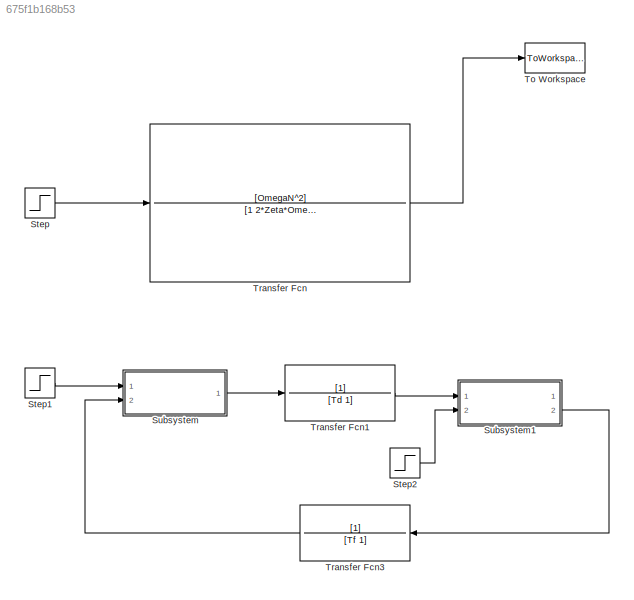
MODEL slx_675f1b168b53
KIND model
CONFIG AbsTol = auto
CONFIG EnableMultiTasking = off
CONFIG FixedStep = 0.0001
CONFIG MaxStep = auto
CONFIG MinStep = auto
CONFIG RelTol = 1e-3
CONFIG SampleTimeConstraint = Unconstrained
CONFIG Solver = FixedStepAuto
CONFIG SolverName = FixedStepAuto
CONFIG StartTime = 0.0
CONFIG StopTime = 1
BLOCK [Step] Step
  After = 62.5
  SampleTime = 0
  Time = 0
BLOCK [Step] Step1
  After = 62.5
  SampleTime = 0
  Time = 0
BLOCK [Step] Step2
  After = 70
  SampleTime = 0
  Time = 0.5
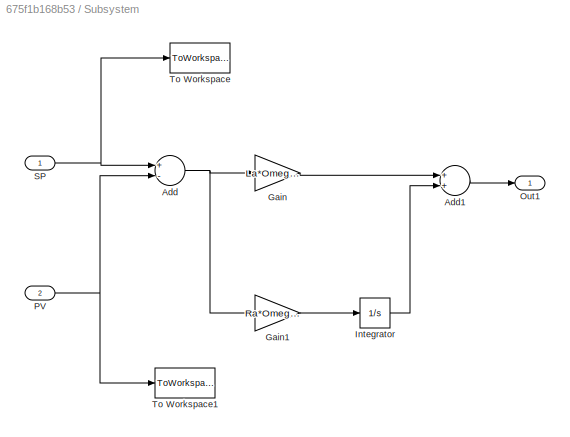
BLOCK [SubSystem] Subsystem
  Ports = [2, 1]
  RequestExecContextInheritance = off
BLOCK [Sum] Subsystem/Add
  InputSameDT = off
  Inputs = +-
  OutDataTypeStr = Inherit: Inherit via internal rule
  Ports = [2, 1]
  SaturateOnIntegerOverflow = off
BLOCK [Sum] Subsystem/Add1
  InputSameDT = off
  OutDataTypeStr = Inherit: Inherit via internal rule
  Ports = [2, 1]
  SaturateOnIntegerOverflow = off
BLOCK [Gain] Subsystem/Gain
  Gain = La*OmegaN/2/Zeta
  OutDataTypeStr = Inherit: Inherit via internal rule
  ParamDataTypeStr = Inherit: Inherit via internal rule
  SaturateOnIntegerOverflow = off
BLOCK [Gain] Subsystem/Gain1
  Gain = Ra*OmegaN/2/Zeta
  OutDataTypeStr = Inherit: Inherit via internal rule
  ParamDataTypeStr = Inherit: Inherit via internal rule
  SaturateOnIntegerOverflow = off
BLOCK [Integrator] Subsystem/Integrator
  Ports = [1, 1]
BLOCK [Outport] Subsystem/Out1
  IconDisplay = Port number
BLOCK [Inport] Subsystem/PV
  IconDisplay = Port number
  Port = 2
BLOCK [Inport] Subsystem/SP
  IconDisplay = Port number
BLOCK [ToWorkspace] Subsystem/To Workspace
  FixptAsFi = on
  MaxDataPoints = inf
  Ports = [1]
  SampleTime = -1
  Save2DSignal = 3-D array (concatenate along third dimension)
  SaveFormat = Timeseries
  VariableName = I_SP
BLOCK [ToWorkspace] Subsystem/To Workspace1
  FixptAsFi = on
  MaxDataPoints = inf
  Ports = [1]
  SampleTime = -1
  Save2DSignal = 3-D array (concatenate along third dimension)
  SaveFormat = Timeseries
  VariableName = I_PV
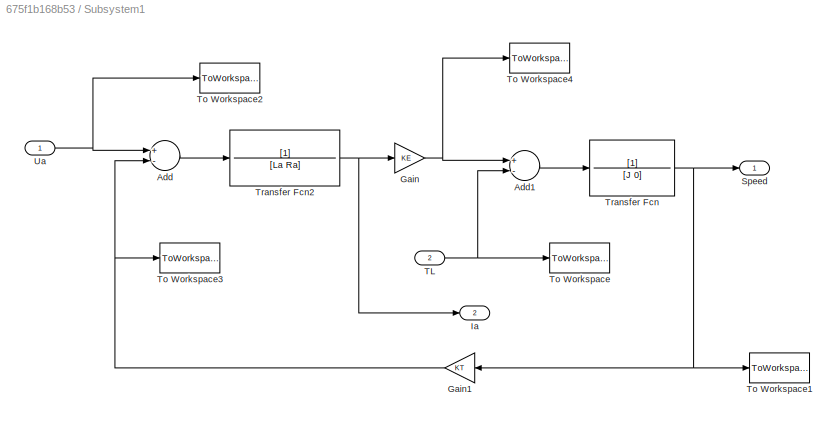
BLOCK [SubSystem] Subsystem1
  Ports = [2, 2]
  RequestExecContextInheritance = off
BLOCK [Sum] Subsystem1/Add
  InputSameDT = off
  Inputs = +-
  OutDataTypeStr = Inherit: Inherit via internal rule
  Ports = [2, 1]
  SaturateOnIntegerOverflow = off
BLOCK [Sum] Subsystem1/Add1
  InputSameDT = off
  Inputs = +-
  OutDataTypeStr = Inherit: Inherit via internal rule
  Ports = [2, 1]
  SaturateOnIntegerOverflow = off
BLOCK [Gain] Subsystem1/Gain
  Gain = KE
  OutDataTypeStr = Inherit: Inherit via internal rule
  ParamDataTypeStr = Inherit: Inherit via internal rule
  SaturateOnIntegerOverflow = off
BLOCK [Gain] Subsystem1/Gain1
  Gain = KT
  OutDataTypeStr = Inherit: Inherit via internal rule
  ParamDataTypeStr = Inherit: Inherit via internal rule
  SaturateOnIntegerOverflow = off
BLOCK [Outport] Subsystem1/Ia
  IconDisplay = Port number
  Port = 2
BLOCK [Outport] Subsystem1/Speed
  IconDisplay = Port number
BLOCK [Inport] Subsystem1/TL
  IconDisplay = Port number
  Port = 2
BLOCK [ToWorkspace] Subsystem1/To Workspace
  FixptAsFi = on
  MaxDataPoints = inf
  Ports = [1]
  SampleTime = -1
  Save2DSignal = 3-D array (concatenate along third dimension)
  SaveFormat = Timeseries
  VariableName = TL
BLOCK [ToWorkspace] Subsystem1/To Workspace1
  FixptAsFi = on
  MaxDataPoints = inf
  Ports = [1]
  SampleTime = -1
  Save2DSignal = 3-D array (concatenate along third dimension)
  SaveFormat = Timeseries
  VariableName = Speed
BLOCK [ToWorkspace] Subsystem1/To Workspace2
  FixptAsFi = on
  MaxDataPoints = inf
  Ports = [1]
  SampleTime = -1
  Save2DSignal = 3-D array (concatenate along third dimension)
  SaveFormat = Timeseries
  VariableName = Ua
BLOCK [ToWorkspace] Subsystem1/To Workspace3
  FixptAsFi = on
  MaxDataPoints = inf
  Ports = [1]
  SampleTime = -1
  Save2DSignal = 3-D array (concatenate along third dimension)
  SaveFormat = Timeseries
  VariableName = Ea
BLOCK [ToWorkspace] Subsystem1/To Workspace4
  FixptAsFi = on
  MaxDataPoints = inf
  Ports = [1]
  SampleTime = -1
  Save2DSignal = 3-D array (concatenate along third dimension)
  SaveFormat = Timeseries
  VariableName = Te
BLOCK [TransferFcn] Subsystem1/Transfer Fcn
  Denominator = [J 0]
BLOCK [TransferFcn] Subsystem1/Transfer Fcn2
  Denominator = [La Ra]
BLOCK [Inport] Subsystem1/Ua
  IconDisplay = Port number
BLOCK [ToWorkspace] To Workspace
  FixptAsFi = on
  MaxDataPoints = inf
  Ports = [1]
  SampleTime = -1
  Save2DSignal = 3-D array (concatenate along third dimension)
  SaveFormat = Timeseries
  VariableName = I_expt
BLOCK [TransferFcn] Transfer Fcn
  Denominator = [1 2*Zeta*OmegaN OmegaN^2]
  Numerator = [OmegaN^2]
BLOCK [TransferFcn] Transfer Fcn1
  Denominator = [Td 1]
BLOCK [TransferFcn] Transfer Fcn3
  Denominator = [Tf 1]
LINE Step1:1 -> Subsystem:1
LINE Step2:1 -> Subsystem1:2
LINE Step:1 -> Transfer Fcn:1
LINE Subsystem/Add1:1 -> Subsystem/Out1:1
NET Subsystem/Add:1 -> Subsystem/Gain1:1, Subsystem/Gain:1
LINE Subsystem/Gain1:1 -> Subsystem/Integrator:1
LINE Subsystem/Gain:1 -> Subsystem/Add1:1
LINE Subsystem/Integrator:1 -> Subsystem/Add1:2
NET Subsystem/PV:1 -> Subsystem/Add:2, Subsystem/To Workspace1:1
NET Subsystem/SP:1 -> Subsystem/Add:1, Subsystem/To Workspace:1
LINE Subsystem1/Add1:1 -> Subsystem1/Transfer Fcn:1
LINE Subsystem1/Add:1 -> Subsystem1/Transfer Fcn2:1
NET Subsystem1/Gain1:1 -> Subsystem1/Add:2, Subsystem1/To Workspace3:1
NET Subsystem1/Gain:1 -> Subsystem1/Add1:1, Subsystem1/To Workspace4:1
NET Subsystem1/TL:1 -> Subsystem1/Add1:2, Subsystem1/To Workspace:1
NET Subsystem1/Transfer Fcn2:1 -> Subsystem1/Gain:1, Subsystem1/Ia:1
NET Subsystem1/Transfer Fcn:1 -> Subsystem1/Gain1:1, Subsystem1/Speed:1, Subsystem1/To Workspace1:1
NET Subsystem1/Ua:1 -> Subsystem1/Add:1, Subsystem1/To Workspace2:1
LINE Subsystem1:2 -> Transfer Fcn3:1
LINE Subsystem:1 -> Transfer Fcn1:1
LINE Transfer Fcn1:1 -> Subsystem1:1
LINE Transfer Fcn3:1 -> Subsystem:2
LINE Transfer Fcn:1 -> To Workspace:1
note: NET lines group one-source signal fan-out (src -> all destinations, sorted); 1:1 wires keep LINE
